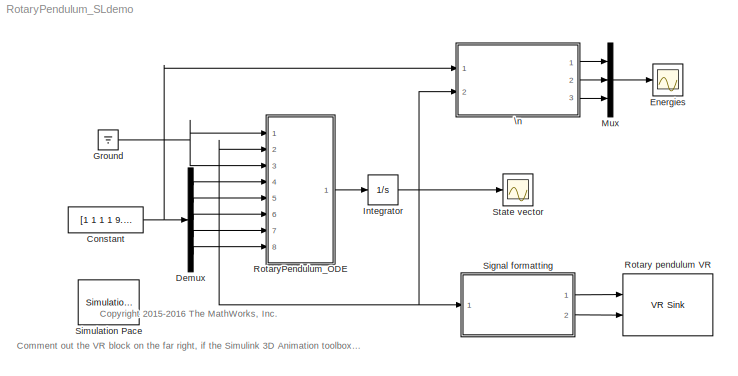
MODEL RotaryPendulum_SLdemo
KIND model
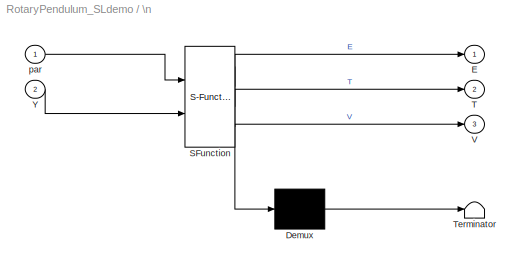
BLOCK [SubSystem]  \n
  ErrorFcn = Stateflow.Translate.translate
  FunctionWithSeparateData = off
  MaskHideContents = off
  MinAlgLoopOccurrences = off
  Opaque = off
  PermitHierarchicalResolution = ParametersOnly
  Ports = [2, 3]
  PropExecContextOutsideSubsystem = off
  RTWSystemCode = Auto
  RequestExecContextInheritance = off
  SFBlockType = MATLAB Function
  SID = 21
  TreatAsAtomicUnit = on
  Variant = off
BLOCK [Demux]  \n/ Demux 
  Outputs = 1
  Ports = [1, 1]
  SID = 21::26
BLOCK [S-Function]  \n/ SFunction 
  EnableBusSupport = on
  FunctionName = sf_sfun
  PortCounts = [2 4]
  Ports = [2, 4]
  SFunctionDeploymentMode = off
  SID = 21::25
  Tag = Stateflow S-Function RotaryPendulum_SLdemo 1
BLOCK [Terminator]  \n/ Terminator 
  SID = 21::27
BLOCK [Outport]  \n/E
  IconDisplay = Port number
  SID = 21::5
BLOCK [Outport]  \n/T
  IconDisplay = Port number
  Port = 2
  SID = 21::19
BLOCK [Outport]  \n/V
  IconDisplay = Port number
  Port = 3
  SID = 21::20
BLOCK [Inport]  \n/Y
  IconDisplay = Port number
  Port = 2
  SID = 21::1
BLOCK [Inport]  \n/par
  IconDisplay = Port number
  SID = 21::21
BLOCK [Constant] Constant
  SID = 12
  Value = [1 1 1 1 9.81]
BLOCK [Demux] Demux
  DisplayOption = bar
  Outputs = 5
  Ports = [1, 5]
  SID = 11
BLOCK [Scope] Energies
  DataFormat = Array
  Decimation = 1
  Grid = on
  LimitDataPoints = on
  MaxDataPoints = 5000
  NumInputPorts = 1
  Ports = [1]
  SID = 22
  SampleInput = off
  SampleTime = -1
  SaveName = ScopeData1
  SaveToWorkspace = off
  ShowLegends = off
  TickLabels = OneTimeTick
  TimeRange = auto
  YMax = 10
  YMin = -10
  ZoomMode = on
BLOCK [Ground] Ground
  SID = 16
BLOCK [Integrator] Integrator
  InitialCondition = [0 0 0.1 0]
  Ports = [1, 1]
  SID = 3
BLOCK [Mux] Mux
  DisplayOption = bar
  Inputs = 3
  Ports = [3, 1]
  SID = 23
BLOCK [Reference] Rotary pendulum VR  REF=vrlib/VR Sink
  AllowVariableSize = off
  AutoView = on
  FieldsWritten = RotaryArm.rotation.4.1.1.double#Pendulum.rotation.4.1.1.double
  FigureProperties = {'Position', 'Name', 'Viewpoint', 'CameraBound', 'CameraDirection', 'CameraPosition', 'CameraUpVector', 'ZoomFactor', 'Antialiasing', 'Headlight', 'Lighting', 'NavPanel', 'Sound', 'StatusBar', 'Stereo3D', 'Stereo3DCameraOffset', 'Stereo3DHIT', 'ToolBar', 'Textures', 'Transparency', 'Triad', 'Wireframe', 'NavZones', 'NavMode', 'NavSpeed', 'CaptureFileFormat', 'CaptureFileName', 'Record2DCompressMet...<+697ch>
  InstantiateOnLoad = on
  Ports = [2]
  RemoteChange = off
  RemoteView = off
  SID = 14
  SampleTime = -1
  SourceBlock = vrlib/VR Sink
  SourceType = Virtual Reality Sink
  VideoDimensions = []
  ViewEnable = on
  WorldFileName = RotaryPendulum_VR.WRL
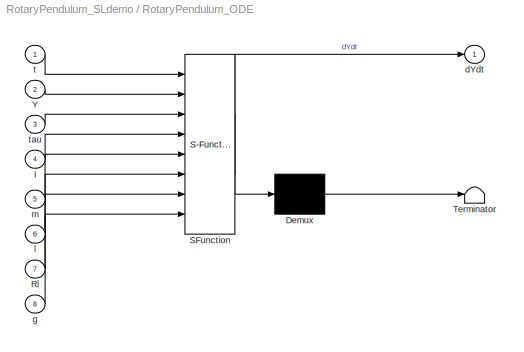
BLOCK [SubSystem] RotaryPendulum_ODE
  ErrorFcn = Stateflow.Translate.translate
  FunctionWithSeparateData = off
  MaskHideContents = off
  MinAlgLoopOccurrences = off
  Opaque = off
  PermitHierarchicalResolution = ParametersOnly
  Ports = [8, 1]
  PropExecContextOutsideSubsystem = off
  RTWSystemCode = Auto
  RequestExecContextInheritance = off
  SFBlockType = MATLAB Function
  SID = 36
  TreatAsAtomicUnit = on
  Variant = off
BLOCK [Demux] RotaryPendulum_ODE/ Demux 
  Outputs = 1
  Ports = [1, 1]
  SID = 36::20
BLOCK [S-Function] RotaryPendulum_ODE/ SFunction 
  EnableBusSupport = on
  FunctionName = sf_sfun
  PortCounts = [8 2]
  Ports = [8, 2]
  SFunctionDeploymentMode = off
  SID = 36::19
  Tag = Stateflow S-Function RotaryPendulum_SLdemo 3
BLOCK [Terminator] RotaryPendulum_ODE/ Terminator 
  SID = 36::21
BLOCK [Inport] RotaryPendulum_ODE/I
  IconDisplay = Port number
  Port = 4
  SID = 36::24
BLOCK [Inport] RotaryPendulum_ODE/Rl
  IconDisplay = Port number
  Port = 7
  SID = 36::27
BLOCK [Inport] RotaryPendulum_ODE/Y
  IconDisplay = Port number
  Port = 2
  SID = 36::22
BLOCK [Outport] RotaryPendulum_ODE/dYdt
  IconDisplay = Port number
  SID = 36::5
BLOCK [Inport] RotaryPendulum_ODE/g
  IconDisplay = Port number
  Port = 8
  SID = 36::28
BLOCK [Inport] RotaryPendulum_ODE/l
  IconDisplay = Port number
  Port = 6
  SID = 36::26
BLOCK [Inport] RotaryPendulum_ODE/m
  IconDisplay = Port number
  Port = 5
  SID = 36::25
BLOCK [Inport] RotaryPendulum_ODE/t
  IconDisplay = Port number
  SID = 36::1
BLOCK [Inport] RotaryPendulum_ODE/tau
  IconDisplay = Port number
  Port = 3
  SID = 36::23
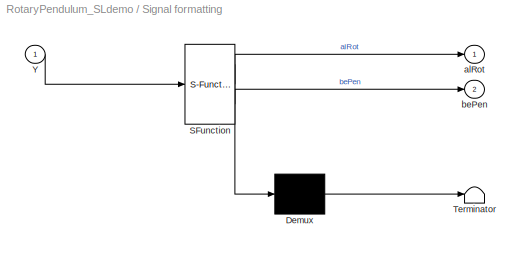
BLOCK [SubSystem] Signal formatting
  ErrorFcn = Stateflow.Translate.translate
  FunctionWithSeparateData = off
  MaskHideContents = off
  MinAlgLoopOccurrences = off
  Opaque = off
  PermitHierarchicalResolution = ParametersOnly
  Ports = [1, 2]
  PropExecContextOutsideSubsystem = off
  RTWSystemCode = Auto
  RequestExecContextInheritance = off
  SFBlockType = MATLAB Function
  SID = 15
  TreatAsAtomicUnit = on
  Variant = off
BLOCK [Demux] Signal formatting/ Demux 
  Outputs = 1
  Ports = [1, 1]
  SID = 15::17
BLOCK [S-Function] Signal formatting/ SFunction 
  EnableBusSupport = on
  FunctionName = sf_sfun
  PortCounts = [1 3]
  Ports = [1, 3]
  SFunctionDeploymentMode = off
  SID = 15::16
  Tag = Stateflow S-Function RotaryPendulum_SLdemo 2
BLOCK [Terminator] Signal formatting/ Terminator 
  SID = 15::18
BLOCK [Inport] Signal formatting/Y
  IconDisplay = Port number
  SID = 15::1
BLOCK [Outport] Signal formatting/alRot
  IconDisplay = Port number
  SID = 15::5
BLOCK [Outport] Signal formatting/bePen
  IconDisplay = Port number
  Port = 2
  SID = 15::6
BLOCK [Reference] Simulation Pace  REF=aerolibanimutils/Simulation Pace
  AttributesFormatString = %<SimulationPace> sec/sec
  OutputPaceError = off
  Ports = []
  SID = 18
  SampleTime = 1/30
  SimulationPace = 1
  SleepMode = MATLAB Thread
  SourceBlock = aerolibanimutils/Simulation Pace
  SourceType = Simulation Pace
BLOCK [Scope] State vector
  DataFormat = Array
  Decimation = 1
  Grid = on
  LimitDataPoints = on
  MaxDataPoints = 5000
  NumInputPorts = 1
  Ports = [1]
  SID = 8
  SampleInput = off
  SampleTime = -1
  SaveName = ScopeData
  SaveToWorkspace = off
  ShowLegends = off
  TickLabels = OneTimeTick
  TimeRange = auto
  YMax = 10
  YMin = -10
  ZoomMode = on
ANNOTATION (root): Comment out the VR block on the far right, if the Simulink 3D Animation toolbox is not available on your system.
ANNOTATION (root): <copyright redacted>
LINE  \n/ Demux :1 ->  \n/ Terminator :1
LINE  \n/ SFunction :1 ->  \n/ Demux :1
LINE  \n/ SFunction :2 ->  \n/E:1
LINE  \n/ SFunction :3 ->  \n/T:1
LINE  \n/ SFunction :4 ->  \n/V:1
LINE  \n/Y:1 ->  \n/ SFunction :2
LINE  \n/par:1 ->  \n/ SFunction :1
LINE  \n:1 -> Mux:1
LINE  \n:2 -> Mux:2
LINE  \n:3 -> Mux:3
NET Constant:1 ->  \n:1, Demux:1
LINE Demux:1 -> RotaryPendulum_ODE:4
LINE Demux:2 -> RotaryPendulum_ODE:5
LINE Demux:3 -> RotaryPendulum_ODE:6
LINE Demux:4 -> RotaryPendulum_ODE:7
LINE Demux:5 -> RotaryPendulum_ODE:8
NET Ground:1 -> RotaryPendulum_ODE:1, RotaryPendulum_ODE:3
NET Integrator:1 ->  \n:2, RotaryPendulum_ODE:2, Signal formatting:1, State vector:1
LINE Mux:1 -> Energies:1
LINE RotaryPendulum_ODE/ Demux :1 -> RotaryPendulum_ODE/ Terminator :1
LINE RotaryPendulum_ODE/ SFunction :1 -> RotaryPendulum_ODE/ Demux :1
LINE RotaryPendulum_ODE/ SFunction :2 -> RotaryPendulum_ODE/dYdt:1
LINE RotaryPendulum_ODE/I:1 -> RotaryPendulum_ODE/ SFunction :4
LINE RotaryPendulum_ODE/Rl:1 -> RotaryPendulum_ODE/ SFunction :7
LINE RotaryPendulum_ODE/Y:1 -> RotaryPendulum_ODE/ SFunction :2
LINE RotaryPendulum_ODE/g:1 -> RotaryPendulum_ODE/ SFunction :8
LINE RotaryPendulum_ODE/l:1 -> RotaryPendulum_ODE/ SFunction :6
LINE RotaryPendulum_ODE/m:1 -> RotaryPendulum_ODE/ SFunction :5
LINE RotaryPendulum_ODE/t:1 -> RotaryPendulum_ODE/ SFunction :1
LINE RotaryPendulum_ODE/tau:1 -> RotaryPendulum_ODE/ SFunction :3
LINE RotaryPendulum_ODE:1 -> Integrator:1
LINE Signal formatting/ Demux :1 -> Signal formatting/ Terminator :1
LINE Signal formatting/ SFunction :1 -> Signal formatting/ Demux :1
LINE Signal formatting/ SFunction :2 -> Signal formatting/alRot:1
LINE Signal formatting/ SFunction :3 -> Signal formatting/bePen:1
LINE Signal formatting/Y:1 -> Signal formatting/ SFunction :1
LINE Signal formatting:1 -> Rotary pendulum VR:1
LINE Signal formatting:2 -> Rotary pendulum VR:2
note: NET lines group one-source signal fan-out (src -> all destinations, sorted); 1:1 wires keep LINE
CHART  \n states=1 transitions=1
  STATE_LABEL 'eML_blk_kernel()'
CHART Signal formatting states=1 transitions=1
  STATE_LABEL 'eML_blk_kernel()'
CHART RotaryPendulum_ODE states=1 transitions=1
  STATE_LABEL 'eML_blk_kernel()'
